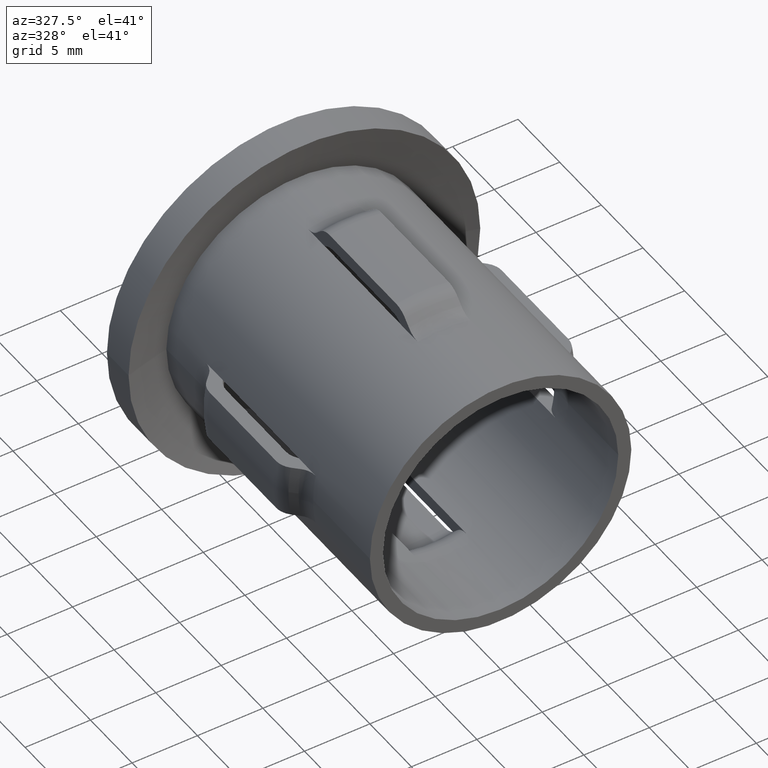
[diagram: clean part render]
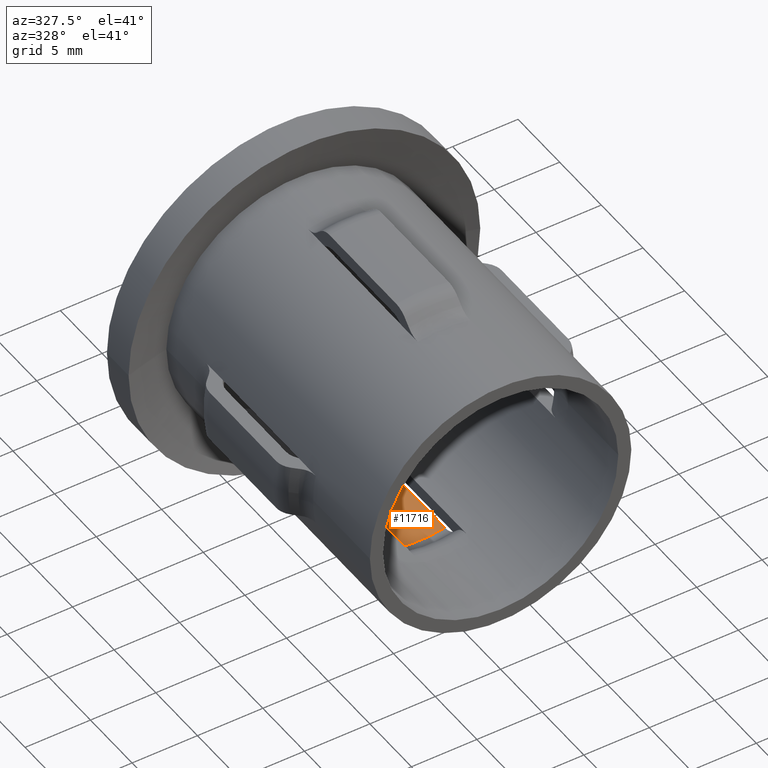
[diagram: same view with one face highlighted and labeled with its STEP entity id]
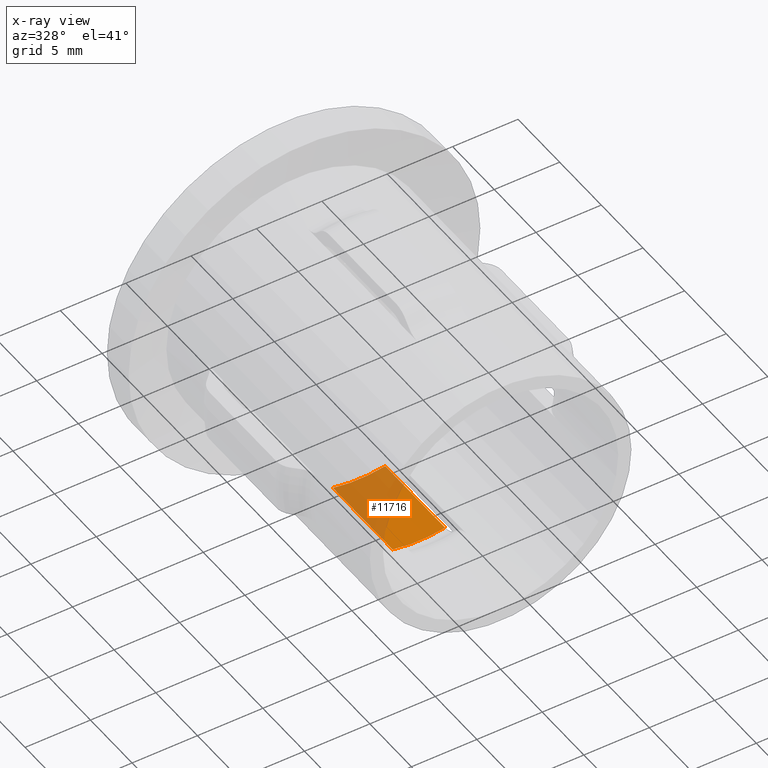
[diagram: x-ray of the same camera — body ghosted, the highlighted face saturated]
A machine part, auxiliary view. The second image highlights one B-rep face of the part: STEP entity #11716.
The next image is the same camera in x-ray: the body ghosted, the highlighted face saturated — about 54% of this face is hidden behind the body in this view.
In plain terms, the highlighted cylindrical surface (partial cylindrical patch) has radius 10.35 mm, axis along (-0, -1, -0).
Its self-contained STEP definition (entity closure, byte-faithful):
#182 = EDGE_CURVE ( 'NONE', #13523, #12078, #2396, .T. ) ;
#198 = CIRCLE ( 'NONE', #1525, 10.35000000000002096 ) ;
#945 = FACE_OUTER_BOUND ( 'NONE', #10459, .T. ) ;
#1134 = AXIS2_PLACEMENT_3D ( 'NONE', #1456, #11387, #7979 ) ;
#1456 = CARTESIAN_POINT ( 'NONE',  ( 0.000000000000000000, 25.50000000000000000, 0.000000000000000000 ) ) ;
#1525 = AXIS2_PLACEMENT_3D ( 'NONE', #4121, #12667, #5131 ) ;
#1697 = EDGE_CURVE ( 'NONE', #7348, #5245, #198, .T. ) ;
#2396 = CIRCLE ( 'NONE', #6272, 10.35000000000004228 ) ;
#2404 = EDGE_CURVE ( 'NONE', #5245, #12078, #2711, .T. ) ;
#2711 = LINE ( 'NONE', #7813, #13916 ) ;
#4121 = CARTESIAN_POINT ( 'NONE',  ( -2.471123941472053941E-14, 16.99314575050765086, 0.000000000000000000 ) ) ;
#4720 = CARTESIAN_POINT ( 'NONE',  ( -1.999999999999998224, 16.99314575050765797, -10.15492491355797888 ) ) ;
#4755 = EDGE_CURVE ( 'NONE', #7348, #13523, #9982, .T. ) ;
#5131 = DIRECTION ( 'NONE',  ( 1.000000000000000000, -3.016910393003136548E-15, 0.000000000000000000 ) ) ;
#5204 = CARTESIAN_POINT ( 'NONE',  ( 2.000000000000000888, 16.99314575050780007, -10.15492491355901450 ) ) ;
#5245 = VERTEX_POINT ( 'NONE', #5204 ) ;
#5479 = DIRECTION ( 'NONE',  ( 1.000000000000000000, -2.849304260058512175E-15, 0.000000000000000000 ) ) ;
#6272 = AXIS2_PLACEMENT_3D ( 'NONE', #10880, #13003, #5479 ) ;
#6879 = ORIENTED_EDGE ( 'NONE', *, *, #2404, .F. ) ;
#7106 = VECTOR ( 'NONE', #10192, 1000.000000000000000 ) ;
#7348 = VERTEX_POINT ( 'NONE', #4720 ) ;
#7700 = DIRECTION ( 'NONE',  ( -2.904862207577519418E-15, -1.000000000000000000, -0.000000000000000000 ) ) ;
#7813 = CARTESIAN_POINT ( 'NONE',  ( 2.000000000000000888, 25.50000000000000000, -10.15492491355798421 ) ) ;
#7979 = DIRECTION ( 'NONE',  ( 1.000000000000000000, -3.016910393003133392E-15, 0.000000000000000000 ) ) ;
#9982 = LINE ( 'NONE', #13497, #7106 ) ;
#10192 = DIRECTION ( 'NONE',  ( -2.904862207577519418E-15, -1.000000000000000000, -0.000000000000000000 ) ) ;
#10459 = EDGE_LOOP ( 'NONE', ( #10929, #12794, #11240, #6879 ) ) ;
#10880 = CARTESIAN_POINT ( 'NONE',  ( -4.554367042893340117E-14, 9.821572875253835377, 0.000000000000000000 ) ) ;
#10929 = ORIENTED_EDGE ( 'NONE', *, *, #1697, .F. ) ;
#11240 = ORIENTED_EDGE ( 'NONE', *, *, #182, .T. ) ;
#11387 = DIRECTION ( 'NONE',  ( -2.904862207577519418E-15, -1.000000000000000000, -0.000000000000000000 ) ) ;
#11421 = CARTESIAN_POINT ( 'NONE',  ( 1.999999999999955369, 9.821572875253806956, -10.15492491355798421 ) ) ;
#11660 = CARTESIAN_POINT ( 'NONE',  ( -2.000000000000043965, 9.821572875253810508, -10.15492491355798599 ) ) ;
#11716 = ADVANCED_FACE ( 'NONE', ( #945 ), #13833, .F. ) ;
#12078 = VERTEX_POINT ( 'NONE', #11421 ) ;
#12667 = DIRECTION ( 'NONE',  ( -2.904862207577519418E-15, -1.000000000000000000, -0.000000000000000000 ) ) ;
#12794 = ORIENTED_EDGE ( 'NONE', *, *, #4755, .T. ) ;
#13003 = DIRECTION ( 'NONE',  ( -2.904862207577519418E-15, -1.000000000000000000, -0.000000000000000000 ) ) ;
#13497 = CARTESIAN_POINT ( 'NONE',  ( -1.999999999999998224, 25.50000000000000000, -10.15492491355798599 ) ) ;
#13523 = VERTEX_POINT ( 'NONE', #11660 ) ;
#13833 = CYLINDRICAL_SURFACE ( 'NONE', #1134, 10.35000000000003162 ) ;
#13916 = VECTOR ( 'NONE', #7700, 1000.000000000000000 ) ;